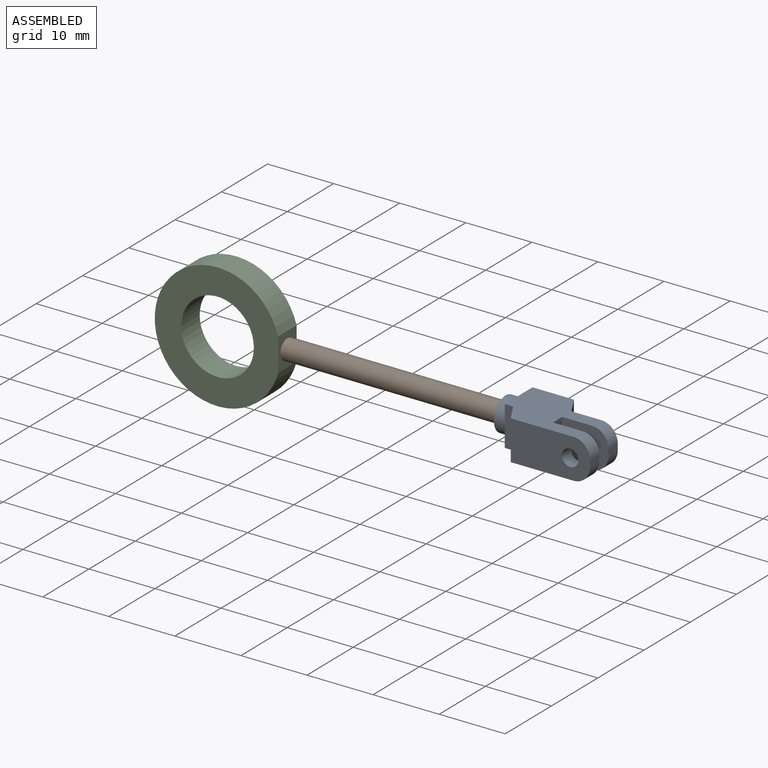
[diagram: assembled view]
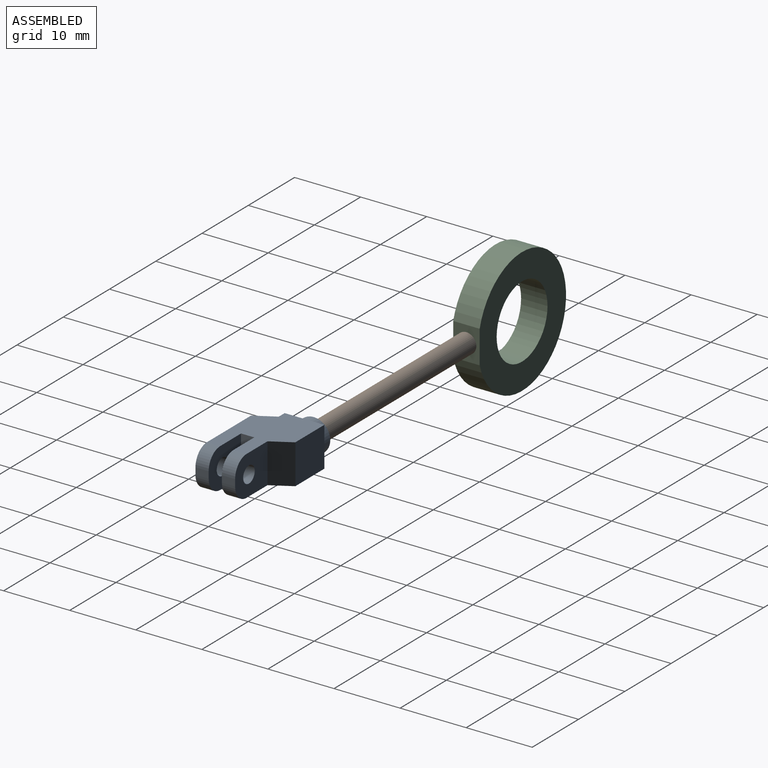
[diagram: assembled view, second angle]
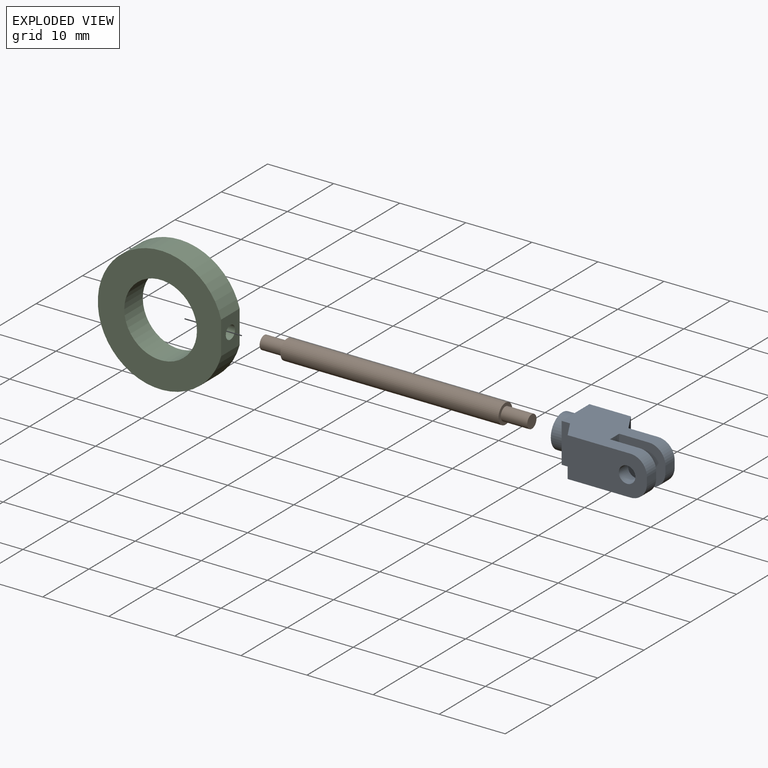
[diagram: exploded view]
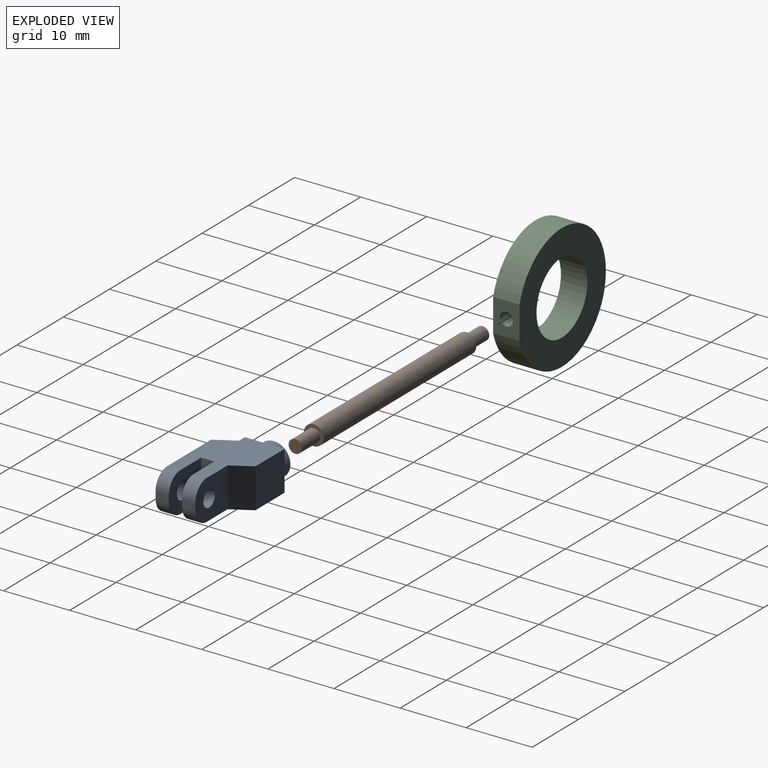
[diagram: exploded view, second angle]
ASSEMBLY  parts=3 mates=2
PART A: 24 faces, bbox 17x9x6 mm
  f0: plane 2x1mm, normal (1,0,0), area 2mm2, adj f1,f11,f21,f23
  f1: plane 12x6mm, normal (0,1,0), area 64.4mm2, adj f0,f2,f12,f13,f14,f21,f23
  f2: plane 6x3mm, normal (-0.87,0.5,0), area 20.8mm2, adj f1,f3,f12,f13
  f3: plane 6x1.27mm, normal (0,1,0), area 7.6mm2, adj f2,f4,f12,f13
  f4: plane 6x6mm, normal (-1,0,0), area 16.4mm2, adj f3,f5,f12,f13,f16
  f5: plane 6.27x6mm, normal (0,-1,0), area 37.6mm2, adj f4,f6,f12,f13
  f6: plane 6x3mm, normal (0.87,-0.5,0), area 20.8mm2, adj f5,f7,f12,f13
  f7: plane 7x6mm, normal (0,-1,0), area 34.4mm2, adj f6,f8,f12,f13,f15,f20,f22
  f8: plane 2x1mm, normal (1,0,0), area 2mm2, adj f7,f9,f20,f22
  f9: plane 7x6mm, normal (0,1,0), area 34.4mm2, adj f8,f10,f12,f13,f15,f20,f22
  f10: plane 6x2mm, normal (1,0,0), area 12mm2, adj f9,f11,f12,f13
  f11: plane 7x6mm, normal (0,-1,0), area 34.4mm2, adj f0,f10,f12,f13,f14,f21,f23
  f12: plane 12.5x9mm, normal (0,0,1), area 81mm2, adj f1,f2,f3,f4,f5,f6,f7,f9
  f13: plane 12.5x9mm, normal (0,0,-1), area 81mm2, adj f1,f2,f3,f4,f5,f6,f7,f9
  f14: cylinder r=1.25mm len=2.5mm, axis (0,1,0), area 15.7mm2, adj f1,f11
  f15: cylinder r=1.25mm len=2.5mm, axis (0,1,0), area 15.7mm2, adj f7,f9
  f16: cylinder r=2.5mm len=5mm, axis (1,0,0), area 31.4mm2, adj f4,f17
  f17: plane 5x5mm, normal (-1,0,0), area 16.5mm2, adj f16,f18
  f18: cylinder r=1mm len=5mm, axis (-1,0,0), area 31.4mm2, adj f17,f19
  f19: plane 2x2mm, normal (-1,0,0), area 3.1mm2, adj f18
  f20: cylinder r=2.5mm len=2.5mm, axis (0,1,0), area 7.9mm2, adj f7,f8,f9,f13
  f21: cylinder r=2.5mm len=2.5mm, axis (0,1,0), area 7.9mm2, adj f0,f1,f11,f13
  f22: cylinder r=2.5mm len=2.5mm, axis (0,-1,0), area 7.9mm2, adj f7,f8,f9,f12
  f23: cylinder r=2.5mm len=2.5mm, axis (0,-1,0), area 7.9mm2, adj f0,f1,f11,f12
PART B: 7 faces, bbox 40.5x3x3 mm
  f0: cylinder r=1mm len=4mm, axis (-1,0,0), area 25.1mm2, adj f1,f4
  f1: plane 2x2mm, normal (1,0,0), area 3.1mm2, adj f0
  f2: cylinder r=1.5mm len=33mm, axis (1,0,0), area 311mm2, adj f3,f4
  f3: plane 3x3mm, normal (-1,0,0), area 3.9mm2, adj f2,f5
  f4: plane 3x3mm, normal (1,0,0), area 3.9mm2, adj f0,f2
  f5: cylinder r=1mm len=3.5mm, axis (1,0,0), area 22mm2, adj f3,f6
  f6: plane 2x2mm, normal (-1,0,0), area 3.1mm2, adj f5
PART C: 6 faces, bbox 18.7x4x19 mm
  f0: cylinder r=5.5mm len=11mm, axis (0,1,0), area 135.1mm2, adj f3,f4,f5
  f1: plane 5x4mm, normal (1,0,0), area 16.9mm2, adj f2,f3,f4,f5
  f2: cylinder r=9.5mm len=19mm, axis (0,1,0), area 218.5mm2, adj f1,f3,f4
  f3: plane 19x18.67mm, normal (0,-1,0), area 187.4mm2, adj f0,f1,f2
  f4: plane 19x18.67mm, normal (0,1,0), area 187.4mm2, adj f0,f1,f2
  f5: cylinder r=1mm len=3.76mm, axis (1,0,0), area 23.3mm2, adj f0,f1
PLACE A rot(axis=(1,0,0),180deg) t=(20.9,-10.7,-40.37)mm
PLACE B t=(20.9,-12.6,22.78)mm
PLACE C t=(20.9,-12.6,22.78)mm
MATE fastened A.f18 <-> B.f0  axis (-1,0,0) through (39.17,-11.65,-8.8)mm
MATE fastened C.f5 <-> B.f0  axis (1,0,0) through (6.17,-11.65,-8.8)mm
